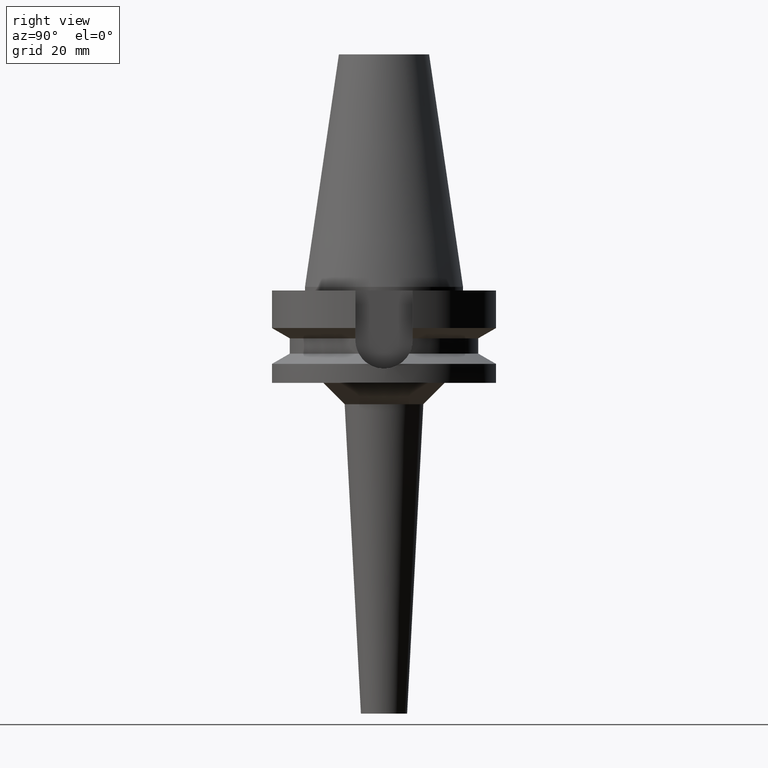
[diagram: clean part render]
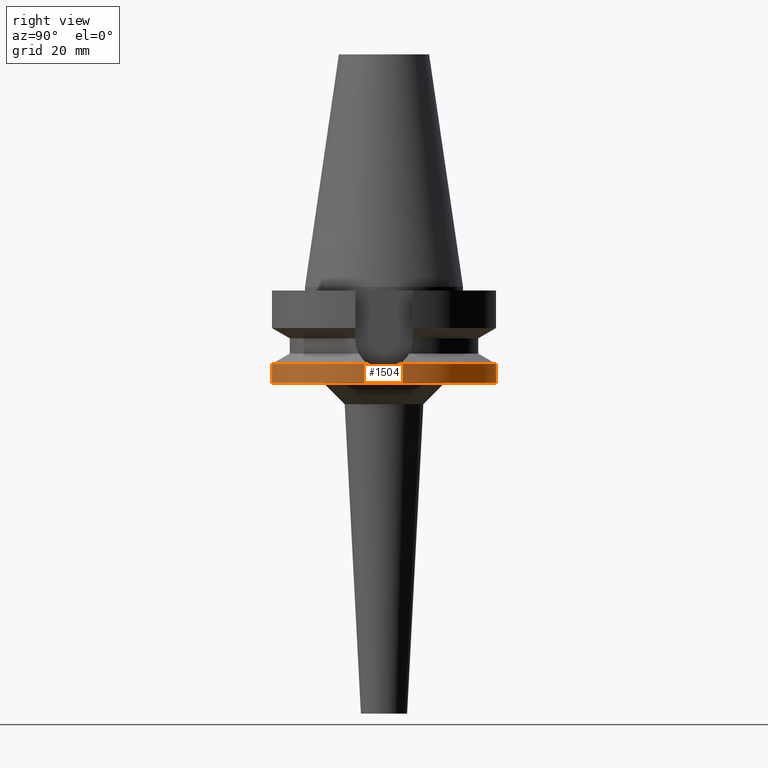
[diagram: same view with one face highlighted and labeled with its STEP entity id]
A machine part, right view. The second image highlights one B-rep face of the part: STEP entity #1504.
In plain terms, the highlighted cylindrical surface (partial cylindrical patch) has radius 31.5 mm, axis along (0, 0, -1).
Its self-contained STEP definition (entity closure, byte-faithful):
#496=CARTESIAN_POINT('',(0.E0,0.E0,-2.163449434733E1));
#497=DIRECTION('',(0.E0,0.E0,-1.E0));
#498=DIRECTION('',(9.898094849553E-1,-1.423979757319E-1,0.E0));
#499=AXIS2_PLACEMENT_3D('',#496,#497,#498);
#526=CARTESIAN_POINT('',(3.117899877609E1,-4.485536235554E0,-2.163449434733E1));
#527=CARTESIAN_POINT('',(3.124368763884E1,-4.035883425561E0,-2.193622756272E1));
#528=CARTESIAN_POINT('',(3.135874382981E1,-3.100355133072E0,-2.243554538910E1));
#529=CARTESIAN_POINT('',(3.147361120250E1,-1.571038160431E0,-2.289772962882E1));
#530=CARTESIAN_POINT('',(3.150000030227E1,-5.301930198640E-1,
-2.300000138149E1));
#531=CARTESIAN_POINT('',(3.150000030227E1,4.156630110389E-14,
-2.300000138149E1));
#536=CARTESIAN_POINT('',(3.150000030227E1,4.156630110389E-14,
-2.300000138149E1));
#537=CARTESIAN_POINT('',(3.150000030227E1,5.302393167214E-1,-2.300000138149E1));
#538=CARTESIAN_POINT('',(3.147360647208E1,1.571145545668E0,-2.289771109817E1));
#539=CARTESIAN_POINT('',(3.135873342942E1,3.100451489198E0,-2.243550222151E1));
#540=CARTESIAN_POINT('',(3.124368229242E1,4.035920588603E0,-2.193620262498E1));
#541=CARTESIAN_POINT('',(3.117899877609E1,4.485536235554E0,-2.163449434733E1));
#546=DIRECTION('',(0.E0,1.099151708819E-13,-1.E0));
#547=VECTOR('',#546,5.365505652669E0);
#548=CARTESIAN_POINT('',(0.E0,3.15E1,-2.163449434733E1));
#549=LINE('',#548,#547);
#573=CARTESIAN_POINT('',(0.E0,0.E0,-2.163449434733E1));
#574=DIRECTION('',(0.E0,0.E0,-1.E0));
#575=DIRECTION('',(0.E0,1.E0,0.E0));
#576=AXIS2_PLACEMENT_3D('',#573,#574,#575);
#620=DIRECTION('',(0.E0,-1.105773104655E-13,-1.E0));
#621=VECTOR('',#620,5.365505652669E0);
#622=CARTESIAN_POINT('',(0.E0,-3.15E1,-2.163449434733E1));
#623=LINE('',#622,#621);
#627=CARTESIAN_POINT('',(0.E0,2.139090564071E-14,-2.7E1));
#628=DIRECTION('',(0.E0,0.E0,1.E0));
#629=DIRECTION('',(0.E0,-1.E0,0.E0));
#630=AXIS2_PLACEMENT_3D('',#627,#628,#629);
#1023=CARTESIAN_POINT('',(0.E0,-3.15E1,-2.7E1));
#1024=CARTESIAN_POINT('',(0.E0,3.15E1,-2.7E1));
#1025=VERTEX_POINT('',#1023);
#1026=VERTEX_POINT('',#1024);
#1027=VERTEX_POINT('',#536);
#1028=VERTEX_POINT('',#541);
#1029=VERTEX_POINT('',#526);
#1030=CARTESIAN_POINT('',(0.E0,3.15E1,-2.163449434733E1));
#1031=VERTEX_POINT('',#1030);
#1032=CARTESIAN_POINT('',(0.E0,-3.15E1,-2.163449434733E1));
#1033=VERTEX_POINT('',#1032);
#1486=CARTESIAN_POINT('',(0.E0,2.139090564071E-14,7.467E1));
#1487=DIRECTION('',(0.E0,0.E0,-1.E0));
#1488=DIRECTION('',(0.E0,-1.E0,0.E0));
#1489=AXIS2_PLACEMENT_3D('',#1486,#1487,#1488);
#1490=CYLINDRICAL_SURFACE('',#1489,3.15E1);
#1491=ORIENTED_EDGE('',*,*,#1472,.T.);
#1492=ORIENTED_EDGE('',*,*,#1470,.T.);
#1494=ORIENTED_EDGE('',*,*,#1493,.F.);
#1496=ORIENTED_EDGE('',*,*,#1495,.T.);
#1498=ORIENTED_EDGE('',*,*,#1497,.F.);
#1500=ORIENTED_EDGE('',*,*,#1499,.F.);
#1501=ORIENTED_EDGE('',*,*,#1458,.F.);
#1502=EDGE_LOOP('',(#1491,#1492,#1494,#1496,#1498,#1500,#1501));
#1503=FACE_OUTER_BOUND('',#1502,.F.);
#500=CIRCLE('',#499,3.15E1);
#532=B_SPLINE_CURVE_WITH_KNOTS('',3,(#526,#527,#528,#529,#530,#531),
.UNSPECIFIED.,.F.,.F.,(4,1,1,4),(0.E0,3.333333333333E-1,6.666666666667E-1,1.E0),
.UNSPECIFIED.);
#542=B_SPLINE_CURVE_WITH_KNOTS('',3,(#536,#537,#538,#539,#540,#541),
.UNSPECIFIED.,.F.,.F.,(4,1,1,4),(0.E0,3.333333333333E-1,6.666666666667E-1,1.E0),
.UNSPECIFIED.);
#577=CIRCLE('',#576,3.15E1);
#631=CIRCLE('',#630,3.15E1);
#1458=EDGE_CURVE('',#1029,#1033,#500,.T.);
#1470=EDGE_CURVE('',#1027,#1028,#542,.T.);
#1472=EDGE_CURVE('',#1029,#1027,#532,.T.);
#1493=EDGE_CURVE('',#1031,#1028,#577,.T.);
#1495=EDGE_CURVE('',#1031,#1026,#549,.T.);
#1497=EDGE_CURVE('',#1025,#1026,#631,.T.);
#1499=EDGE_CURVE('',#1033,#1025,#623,.T.);
#1504=ADVANCED_FACE('',(#1503),#1490,.T.);